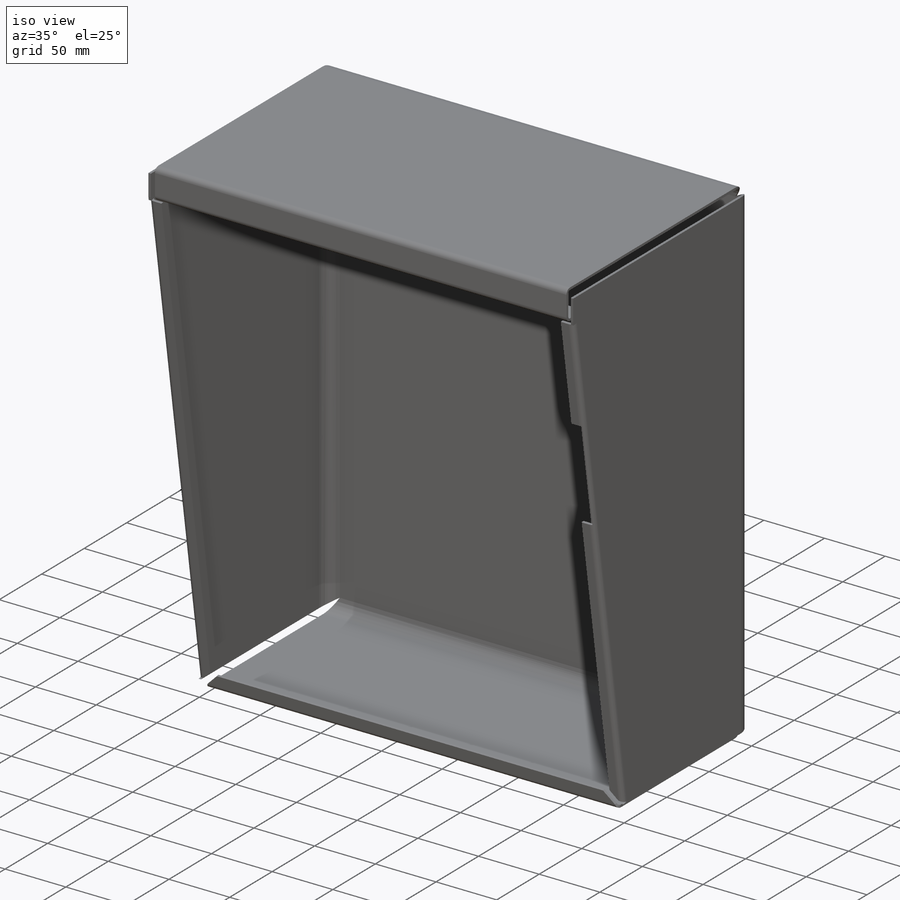
[diagram: iso view]
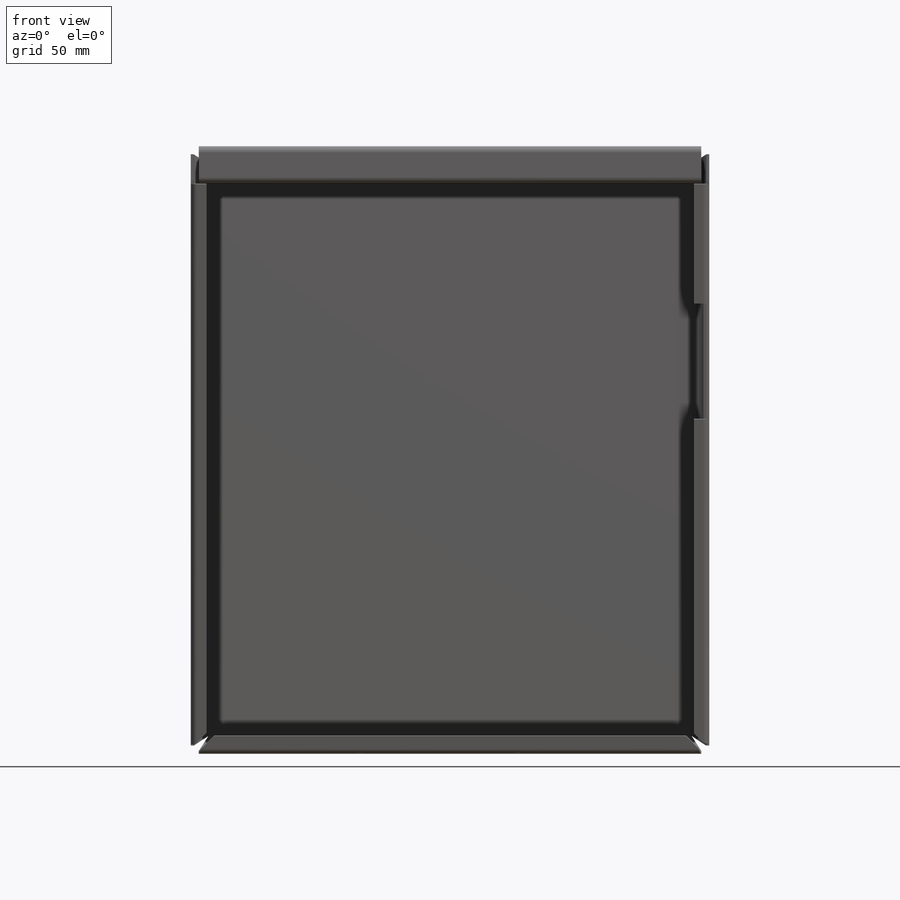
[diagram: front view]
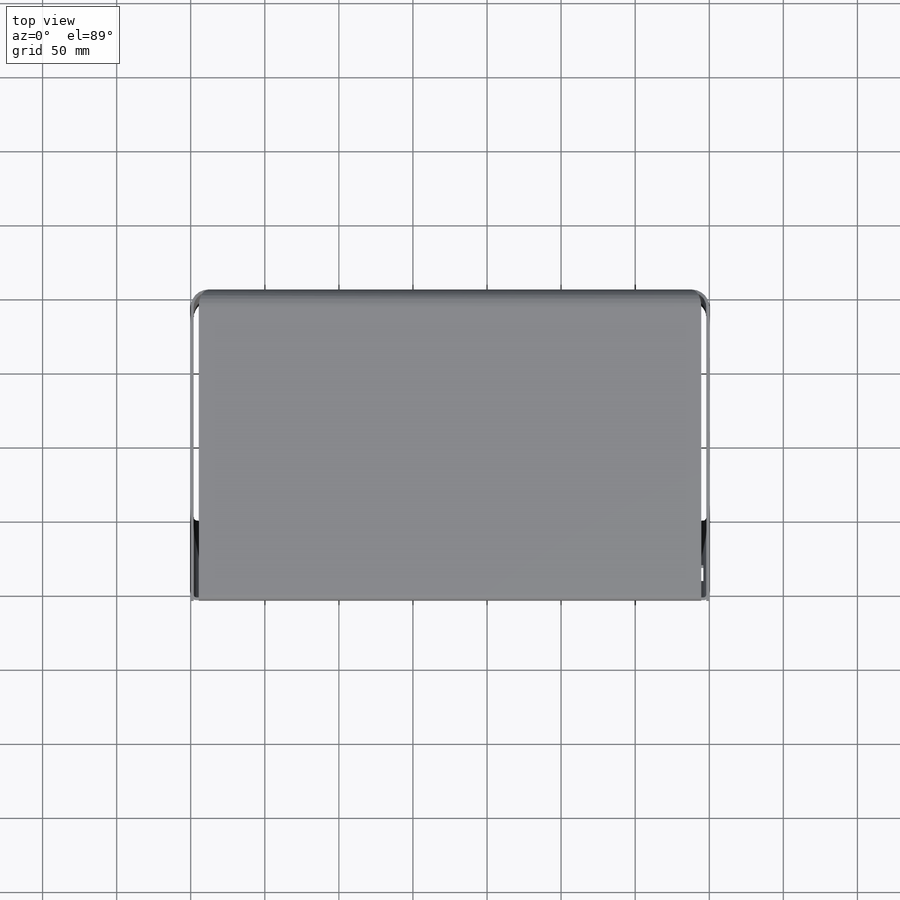
[diagram: top view]
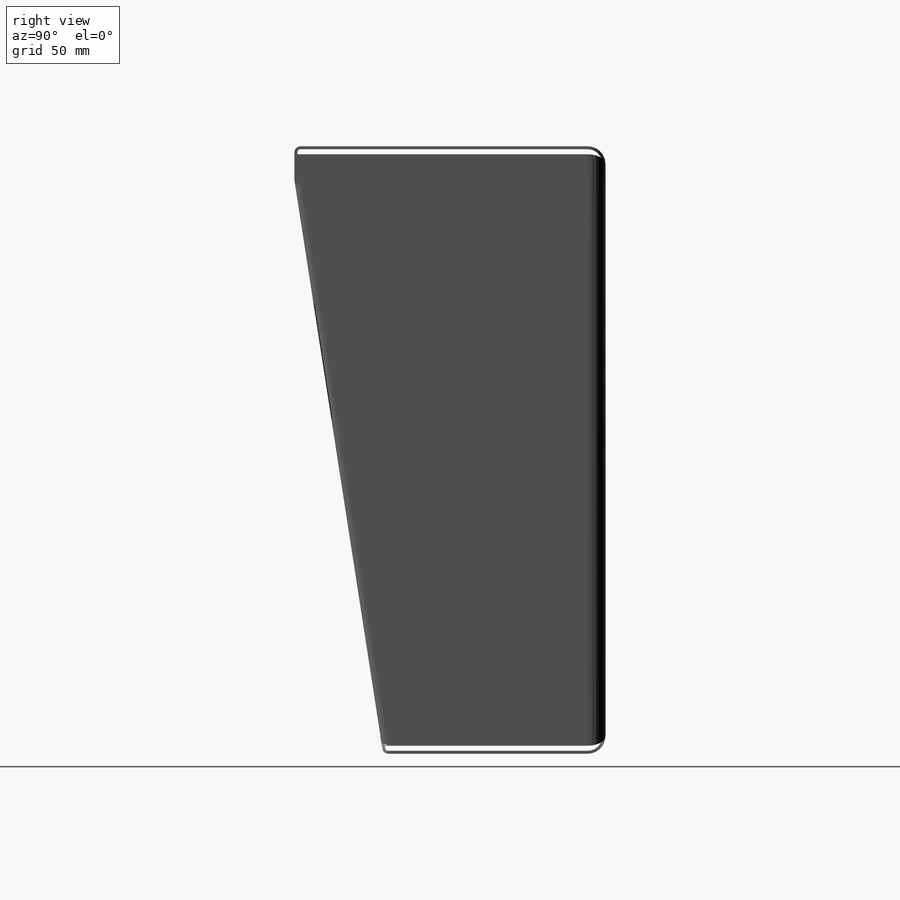
[diagram: right view]
SOLIDWORKS PART (.sldprt)
format: sldprt  version: not decoded by parser v0  size: 504,320 bytes
history: native  units: mm
features: sketch x24, sheet_metal_op x7, plane x3, cut_extrude x2, material x1, extrude x1, shell x1 + 52 further entries (+9 scaffold rows collapsed; 1 parser-record rows omitted)
feature tree (101):
  scaffold x9  (default folders/planes/origin — collapsed)
  material  "Material <nicht festgelegt>"
  plane  "Vorne"
  plane  "Oben"
  plane  "Links"
  sketch  "Skizze1"  dims[c1.D1=~98.36097mm c1.D2=~103.223447mm c2.D1=350.0mm c2.D2=410.0mm]
  extrude  "Aufsatz-Linear austragen1"  Depth=210mm
  shell  "Wandung1"  Thickness=2mm
  sketch  "Skizze2"  dims[D1=150.1mm D2=387.0mm]
  cut_extrude  "Schnitt-Linear austragen1"  Depth=10mm Biegung-Winkel2=0 Biegung-Winkel3=0 Biegung-Winkel4=0
  sketch  "Skizze9"  dims[c1.D1=~25.789123mm c2.D1=45.0deg c2.D2=8.5mm c2.D3=375.0mm c2.Kantenbiegung1=0.0 c3.D1=2.0mm c3.D4=90.0deg c3.D5=5.0 c3.D8=0.0mm c3.D9=0.0mm c4.D1=2.0mm c4.D2=500.0mm c4.D3=0.0mm c4.D6=10.0mm c4.D7=8.5mm]
  sketch  "Skizze12"  dims[c1.D1=~12.202486mm c2.D1=45.0deg c2.D2=~9.392015mm c3.D2=45.0deg c3.D3=10.5mm c3.Kantenbiegung2=0.0 c3.D1=2.0mm c3.D4=80.0deg c3.D5=6.0 c3.D8=0.0mm c3.D9=0.0mm c4.D1=2.0mm c4.D2=500.0mm c4.D3=0.0mm c4.D6=10.0mm c4.D7=10.5mm]
  sketch  "Skizze15"  dims[c1.D1=~7.799059mm c2.D1=45.0deg c2.D2=8.5mm c2.D3=375.0mm c2.Kantenbiegung3=0.0 c3.D1=2.0mm c3.D4=90.0deg c3.D5=7.0 c3.D8=0.0mm c3.D9=0.0mm c4.D1=2.0mm c4.D2=500.0mm c4.D3=0.0mm c4.D6=10.0mm c4.D7=8.5mm]
  sketch  "Skizze16"  dims[c1.D1=~54.029809mm c1.D2=~6.611636mm c2.D1=228.9mm c2.D2=307.9mm]
  cut_extrude  "Schnitt-Linear austragen2"  Depth=2mm
  sketch  "Skizze21"  dims[c1.Kantenbiegung4=0.0 c1.D1=2.0mm c1.D4=90.0deg c1.D5=8.0 c1.D8=0.0mm c1.D9=0.0mm c2.D1=2.0mm c2.D2=500.0mm c2.D3=0.0mm c2.D6=10.0mm c2.D7=23.0mm]
  sketch  "Skizze24"  dims[c1.Kantenbiegung5=0.0 c1.D1=2.0mm c1.D4=90.0deg c1.D5=9.0 c1.D8=0.0mm c1.D9=0.0mm c2.D1=2.0mm c2.D2=500.0mm c2.D3=0.0mm c2.D6=10.0mm c2.D7=18.0mm]
  sketch  "Biegung-Linien1"
  sketch  "Rahmen1"
  sheet_metal_op  "Blech3"
  "Abwicklung3"
  sketch  "Biegung-Linien2"
  sketch  "Rahmen2"
  parser-record x1  (decoder bookkeeping rows leaked as tree rows — omitted from the tree; the rows remain in map.json)
  "Abwickeln-<Biegung-Winkel2>1"
  "Abwickeln-<Biegung-Winkel3>1"
  "Abwickeln-<Biegung-Winkel4>1"
  sheet_metal_op  "Blech4"
  "Abwicklung3"
  sketch  "Biegung-Linien2"
  sketch  "Rahmen2"
  "Abwickeln-<Biegung-Winkel1>1"
  "Abwickeln-<Biegung-Winkel2>1"
  "Abwickeln-<Biegung-Winkel3>1"
  "Abwickeln-<Biegung-Winkel4>1"
  "Abwickeln-<Kantenbiegung1>1"
  sheet_metal_op  "Blech5"
  "Abwicklung3"
  sketch  "Biegung-Linien2"
  sketch  "Rahmen2"
  "Abwickeln-<Biegung-Winkel1>1"
  "Abwickeln-<Biegung-Winkel2>1"
  "Abwickeln-<Biegung-Winkel3>1"
  "Abwickeln-<Biegung-Winkel4>1"
  "Abwickeln-<Kantenbiegung1>1"
  "Abwickeln-<Kantenbiegung2>1"
  sheet_metal_op  "Blech6"
  "Abwicklung3"
  sketch  "Biegung-Linien2"
  sketch  "Rahmen2"
  "Abwickeln-<Biegung-Winkel1>1"
  "Abwickeln-<Biegung-Winkel2>1"
  "Abwickeln-<Biegung-Winkel3>1"
  "Abwickeln-<Biegung-Winkel4>1"
  "Abwickeln-<Kantenbiegung1>1"
  "Abwickeln-<Kantenbiegung2>1"
  "Abwickeln-<Kantenbiegung3>1"
  sheet_metal_op  "Blech7"
  "Abwicklung3"
  sketch  "Biegung-Linien2"
  sketch  "Rahmen2"
  "Abwickeln-<Biegung-Winkel1>1"
  "Abwickeln-<Biegung-Winkel2>1"
  "Abwickeln-<Biegung-Winkel3>1"
  "Abwickeln-<Biegung-Winkel4>1"
  "Abwickeln-<Kantenbiegung1>1"
  "Abwickeln-<Kantenbiegung2>1"
  "Abwickeln-<Kantenbiegung3>1"
  sheet_metal_op  "Blech8"
  "Abwicklung3"
  sketch  "Biegung-Linien2"
  sketch  "Rahmen2"
  "Abwickeln-<Biegung-Winkel1>1"
  "Abwickeln-<Biegung-Winkel2>1"
  "Abwickeln-<Biegung-Winkel3>1"
  "Abwickeln-<Biegung-Winkel4>1"
  "Abwickeln-<Kantenbiegung1>1"
  "Abwickeln-<Kantenbiegung2>1"
  "Abwickeln-<Kantenbiegung3>1"
  "Abwickeln-<Kantenbiegung4>1"
  sheet_metal_op  "Blech9"
  "Abwicklung3"
  sketch  "Biegung-Linien2"
  sketch  "Rahmen2"
  "Abwickeln-<Biegung-Winkel1>1"
  "Abwickeln-<Biegung-Winkel2>1"
  "Abwickeln-<Biegung-Winkel3>1"
  "Abwickeln-<Biegung-Winkel4>1"
  "Abwickeln-<Kantenbiegung1>1"
  "Abwickeln-<Kantenbiegung2>1"
  "Abwickeln-<Kantenbiegung3>1"
  "Abwickeln-<Kantenbiegung4>1"
  "Abwickeln-<Kantenbiegung5>1"
decode coverage: 12 of 35 modeling features carry decoded parameters; 52 rows unclassified (native names shown)
note: ~ marks probable driven/reference dimensions
note: suppression state not decoded; provenance and decode notes live in map.json
